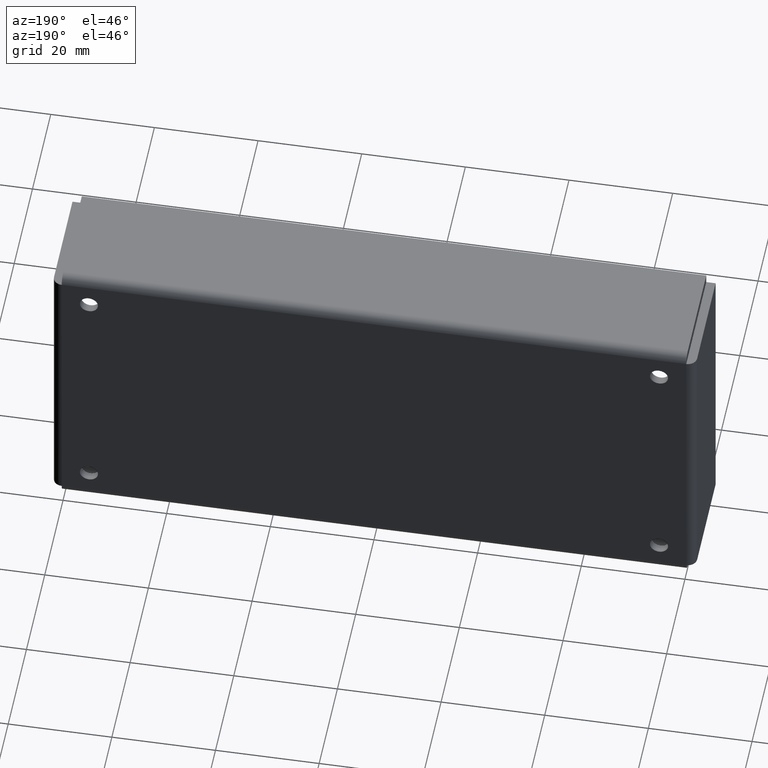
[diagram: clean part render]
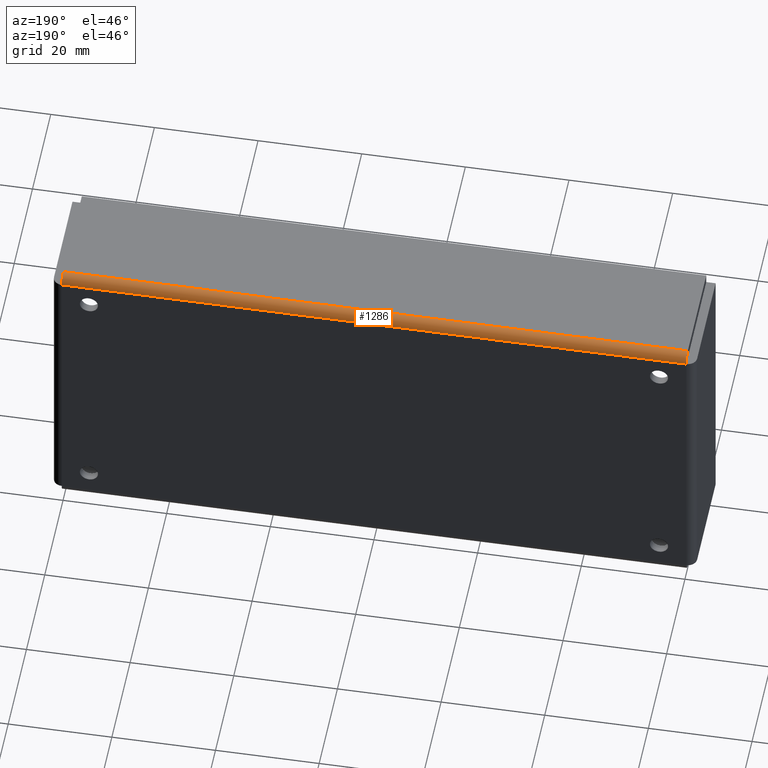
[diagram: same view with one face highlighted and labeled with its STEP entity id]
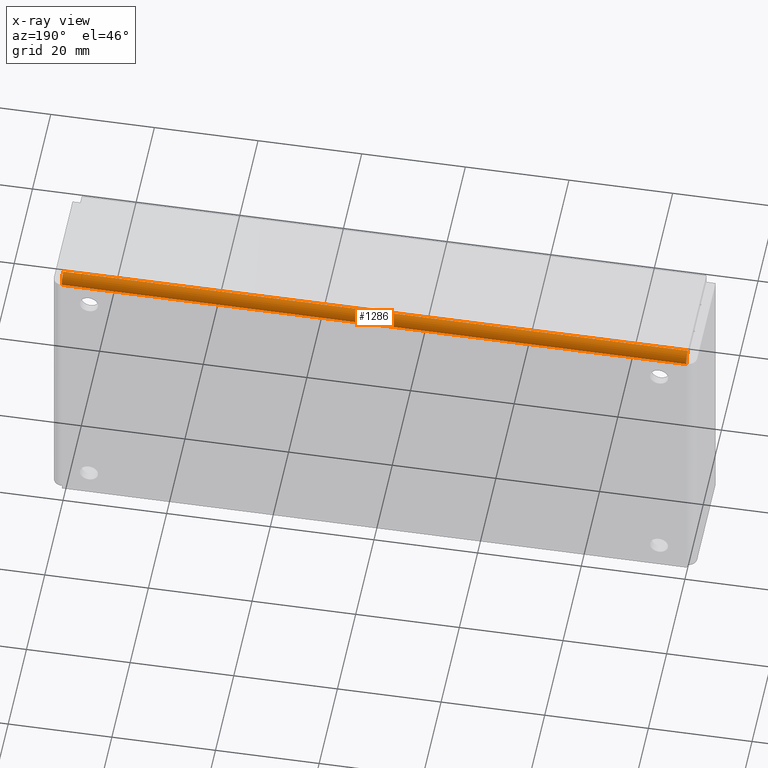
[diagram: x-ray of the same camera — body ghosted, the highlighted face saturated]
A machine part, auxiliary view. The second image highlights one B-rep face of the part: STEP entity #1286.
The next image is the same camera in x-ray: the body ghosted, the highlighted face saturated — about 0% of this face is hidden behind the body in this view.
In plain terms, the highlighted face is a freeform B-spline surface patch.
Its self-contained STEP definition (entity closure, byte-faithful):
#803=CARTESIAN_POINT('',(60.250000000000000,0.0,27.500000000000000));
#804=VERTEX_POINT('',#803);
#847=CARTESIAN_POINT('',(-60.250000000000000,0.0,27.500000000000000));
#848=VERTEX_POINT('',#847);
#1230=CARTESIAN_POINT('',(63.262500000000010,-0.000068538484492,27.484292236102931));
#1231=CARTESIAN_POINT('',(-63.337812499999998,-0.000068538484492,27.484292236102931));
#1232=CARTESIAN_POINT('',(63.262500000000010,0.016775976023182,29.414482415621148));
#1233=CARTESIAN_POINT('',(-63.337812500000005,0.016775976023182,29.414482415621148));
#1234=CARTESIAN_POINT('',(63.262500000000010,-1.909887371162739,29.296642637159351));
#1235=CARTESIAN_POINT('',(-63.337812499999998,-1.909887371162739,29.296642637159351));
#1243=(BOUNDED_SURFACE()B_SPLINE_SURFACE(1,2,((#1230,#1232,#1234),(#1231,#1233,#1235)),.UNSPECIFIED.,.F.,.F.,.U.)B_SPLINE_SURFACE_WITH_KNOTS((2,2),(3,3),(0.0,126.600312500000000),(0.0,3.130649099718708),.UNSPECIFIED.)GEOMETRIC_REPRESENTATION_ITEM()RATIONAL_B_SPLINE_SURFACE(((1.0,0.681998360062499,1.0),(1.0,0.681998360062499,1.0)))REPRESENTATION_ITEM('')SURFACE());
#1244=CARTESIAN_POINT('',(-60.250000000000000,-1.800000000000000,29.300000000000001));
#1245=VERTEX_POINT('',#1244);
#1246=CARTESIAN_POINT('',(-60.250000000000000,0.0,27.500000000000000));
#1247=CARTESIAN_POINT('',(-60.249999999999993,0.0,29.300000000000001));
#1248=CARTESIAN_POINT('',(-60.250000000000000,-1.800000000000000,29.300000000000001));
#1256=(BOUNDED_CURVE()B_SPLINE_CURVE(2,(#1246,#1247,#1248),.UNSPECIFIED.,.F.,.U.)CURVE()GEOMETRIC_REPRESENTATION_ITEM()QUASI_UNIFORM_CURVE()RATIONAL_B_SPLINE_CURVE((1.0,0.707106781186547,1.0))REPRESENTATION_ITEM(''));
#1257=EDGE_CURVE('',#848,#1245,#1256,.T.);
#1258=ORIENTED_EDGE('',*,*,#1257,.T.);
#1259=CARTESIAN_POINT('',(60.250000000000000,-1.800000000000000,29.300000000000001));
#1260=VERTEX_POINT('',#1259);
#1261=CARTESIAN_POINT('',(60.250000000000000,-1.800000000000000,29.300000000000001));
#1262=CARTESIAN_POINT('',(-60.250000000000000,-1.800000000000000,29.300000000000001));
#1263=QUASI_UNIFORM_CURVE('',1,(#1261,#1262),.UNSPECIFIED.,.F.,.U.);
#1264=EDGE_CURVE('',#1260,#1245,#1263,.T.);
#1265=ORIENTED_EDGE('',*,*,#1264,.F.);
#1266=CARTESIAN_POINT('',(60.250000000000000,0.0,27.500000000000000));
#1267=CARTESIAN_POINT('',(60.249999999999993,0.0,29.300000000000001));
#1268=CARTESIAN_POINT('',(60.250000000000000,-1.800000000000000,29.300000000000001));
#1276=(BOUNDED_CURVE()B_SPLINE_CURVE(2,(#1266,#1267,#1268),.UNSPECIFIED.,.F.,.U.)CURVE()GEOMETRIC_REPRESENTATION_ITEM()QUASI_UNIFORM_CURVE()RATIONAL_B_SPLINE_CURVE((1.0,0.707106781186547,1.0))REPRESENTATION_ITEM(''));
#1277=EDGE_CURVE('',#804,#1260,#1276,.T.);
#1278=ORIENTED_EDGE('',*,*,#1277,.F.);
#1279=CARTESIAN_POINT('',(60.250000000000000,0.0,27.500000000000000));
#1280=CARTESIAN_POINT('',(-60.250000000000000,0.0,27.500000000000000));
#1281=QUASI_UNIFORM_CURVE('',1,(#1279,#1280),.UNSPECIFIED.,.F.,.U.);
#1282=EDGE_CURVE('',#804,#848,#1281,.T.);
#1283=ORIENTED_EDGE('',*,*,#1282,.T.);
#1284=EDGE_LOOP('',(#1258,#1265,#1278,#1283));
#1285=FACE_OUTER_BOUND('',#1284,.T.);
#1286=ADVANCED_FACE('',(#1285),#1243,.T.);